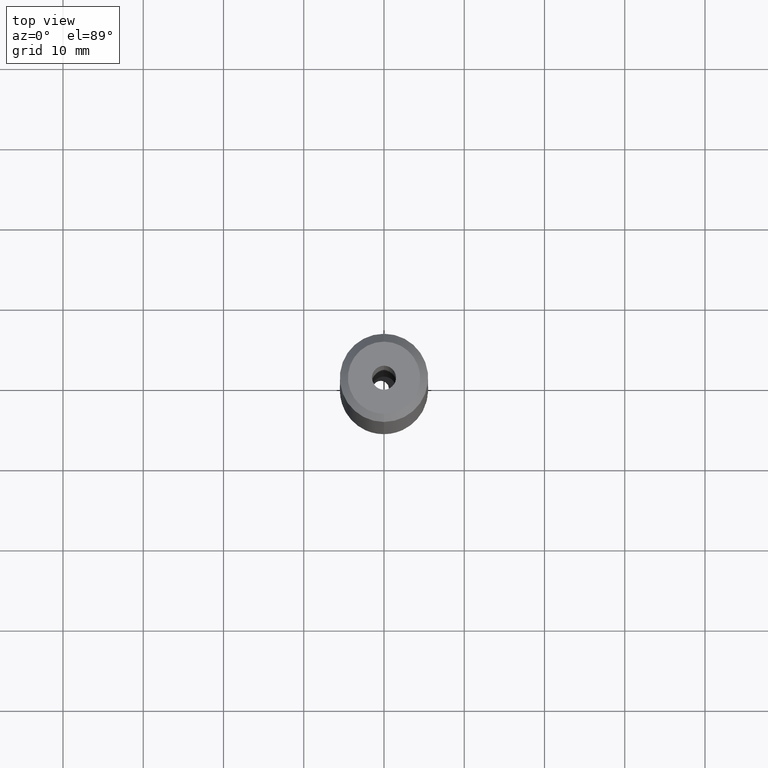
[diagram: clean part render]
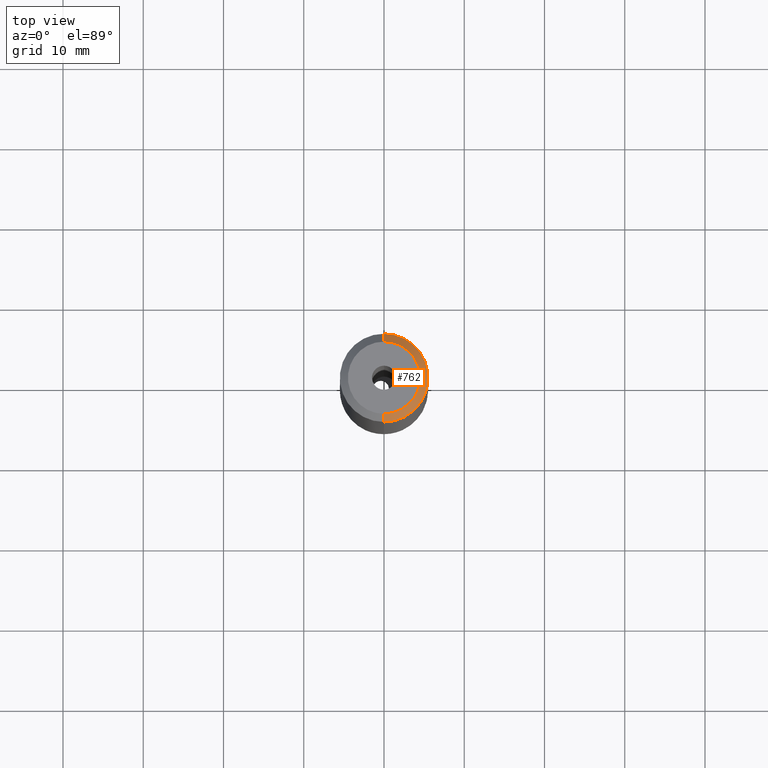
[diagram: same view with one face highlighted and labeled with its STEP entity id]
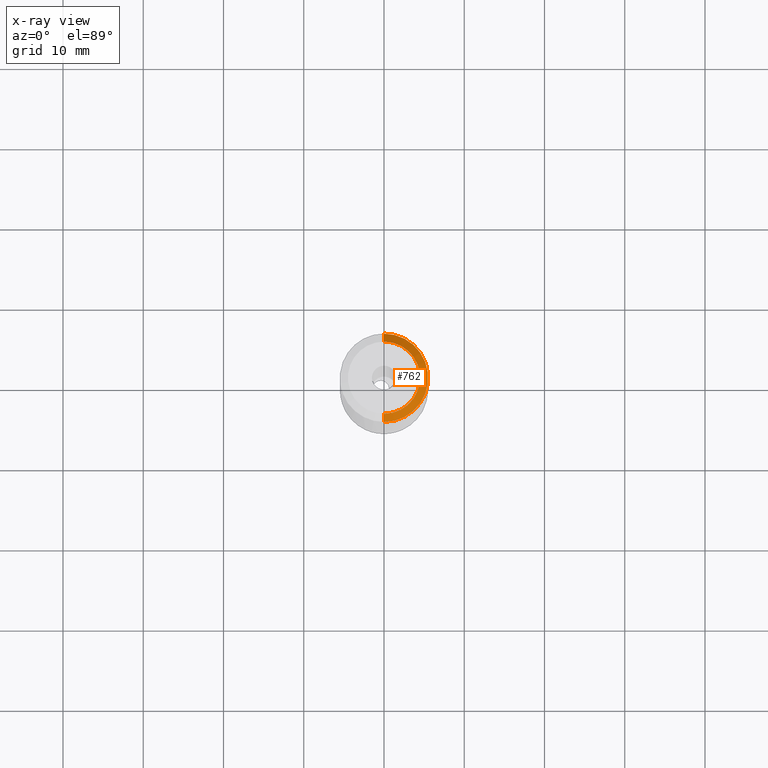
[diagram: x-ray of the same camera — body ghosted, the highlighted face saturated]
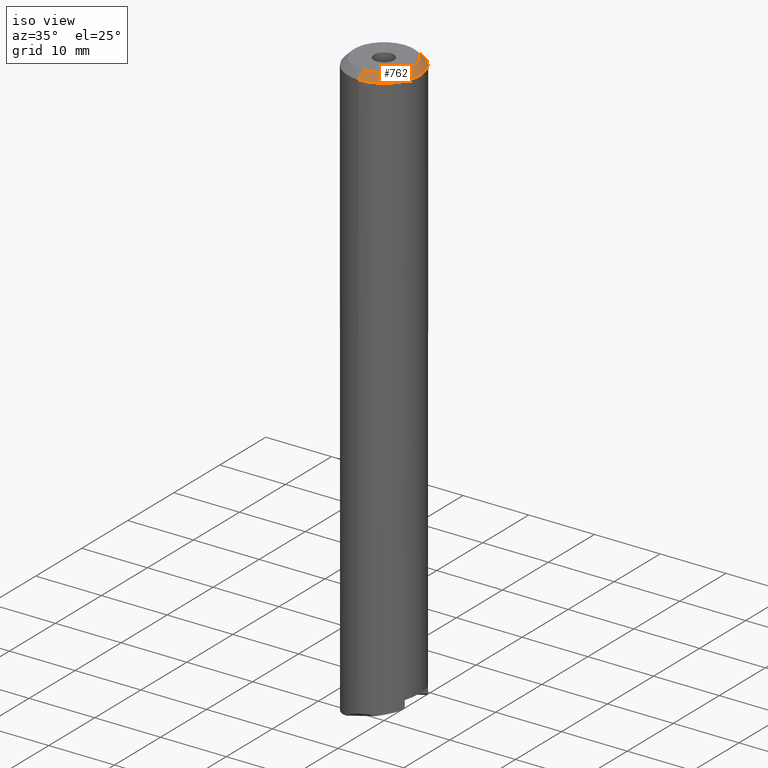
[diagram: same view with one face highlighted and labeled with its STEP entity id]
A machine part, top view. The second image highlights one B-rep face of the part: STEP entity #762.
The next image is the same camera in x-ray: the body ghosted, the highlighted face saturated — about 0% of this face is hidden behind the body in this view.
A second angle (iso view) of the same face is appended — the face is thin or edge-on in the first view.
In plain terms, the highlighted conical surface has half-angle 45 deg.
Its self-contained STEP definition (entity closure, byte-faithful):
#422=VERTEX_POINT('NONE',#1028);
#504=VERTEX_POINT('NONE',#1114);
#592=VERTEX_POINT('NONE',#1215);
#622=VERTEX_POINT('NONE',#1252);
#680=EDGE_CURVE('NONE',#622,#504,#1315,.T.);
#734=EDGE_CURVE('NONE',#422,#504,#1374,.T.);
#762=ADVANCED_FACE('NONE',(#1406),#1407,.T.);
#842=EDGE_CURVE('NONE',#592,#422,#1498,.T.);
#896=EDGE_CURVE('NONE',#622,#592,#1554,.T.);
#1028=CARTESIAN_POINT('',(0.0,5.5,76.0));
#1114=CARTESIAN_POINT('',(-6.73555739531044E-016,-5.5,76.0));
#1215=CARTESIAN_POINT('',(-6.12323399573677E-016,4.5,77.0));
#1252=CARTESIAN_POINT('',(0.0,-4.5,77.0));
#1315=LINE('',#2457,#2458);
#1374=CIRCLE('',#2539,5.5);
#1406=FACE_OUTER_BOUND('',#2616,.T.);
#1407=CONICAL_SURFACE('',#2617,5.5,0.785398163397446);
#1498=LINE('',#2774,#2775);
#1554=CIRCLE('',#2900,4.5);
#2457=CARTESIAN_POINT('',(0.0,-5.5,76.0));
#2458=VECTOR('',#3303,1000.0);
#2539=AXIS2_PLACEMENT_3D('',#3359,#3360,#3361);
#2616=EDGE_LOOP('',(#3402,#3403,#3404,#3405));
#2617=AXIS2_PLACEMENT_3D('',#3406,#3407,#3408);
#2774=CARTESIAN_POINT('',(-6.73555739531044E-016,5.5,76.0));
#2775=VECTOR('',#3524,1000.0);
#2900=AXIS2_PLACEMENT_3D('',#3562,#3563,#3564);
#3303=DIRECTION('',(0.0,-0.707106781186546,-0.707106781186549));
#3359=CARTESIAN_POINT('',(0.0,0.0,76.0));
#3360=DIRECTION('',(0.0,0.0,-1.0));
#3361=DIRECTION('',(0.0,1.0,0.0));
#3402=ORIENTED_EDGE('',*,*,#842,.F.);
#3403=ORIENTED_EDGE('',*,*,#896,.F.);
#3404=ORIENTED_EDGE('',*,*,#680,.T.);
#3405=ORIENTED_EDGE('',*,*,#734,.F.);
#3406=CARTESIAN_POINT('',(0.0,0.0,76.0));
#3407=DIRECTION('',(-0.0,-0.0,-1.0));
#3408=DIRECTION('',(0.0,-1.0,0.0));
#3524=DIRECTION('',(-8.65956056235491E-017,0.707106781186546,-0.707106781186549));
#3562=CARTESIAN_POINT('',(0.0,0.0,77.0));
#3563=DIRECTION('',(0.0,-0.0,1.0));
#3564=DIRECTION('',(0.0,1.0,0.0));